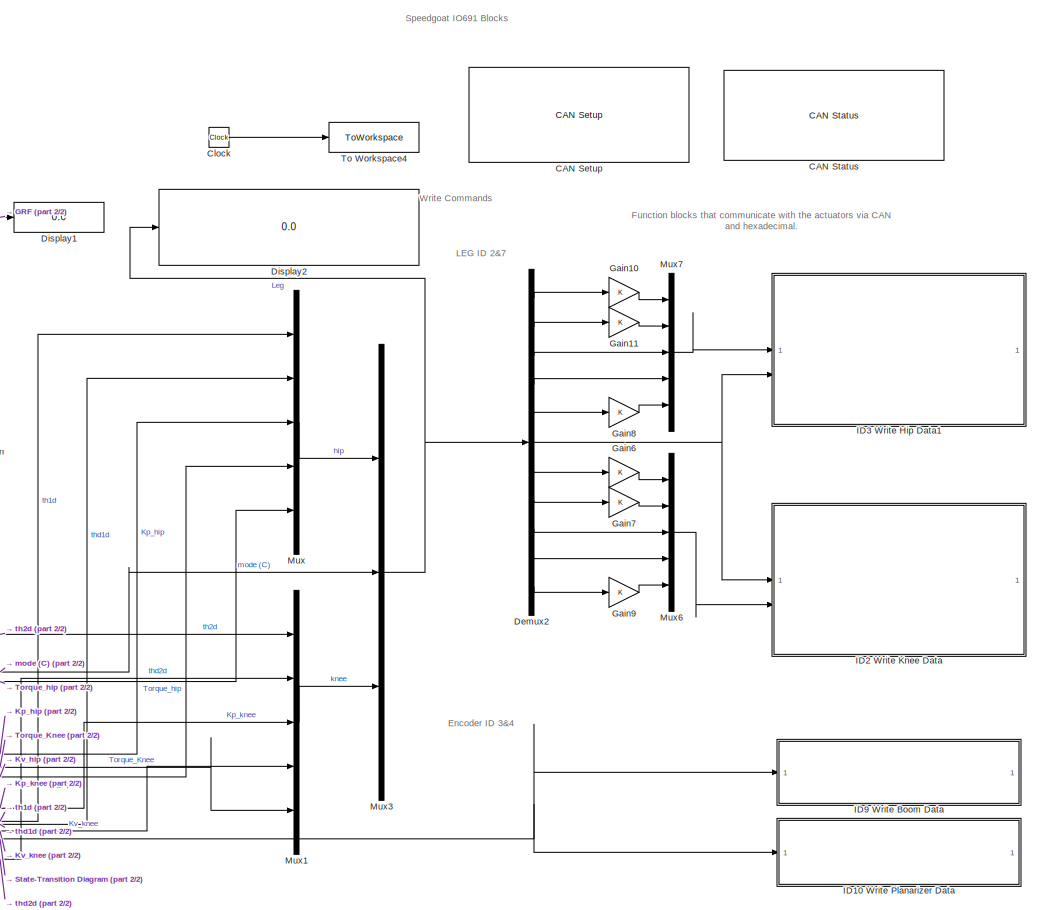
[diagram: root canvas - part 1/2, right side, full height]
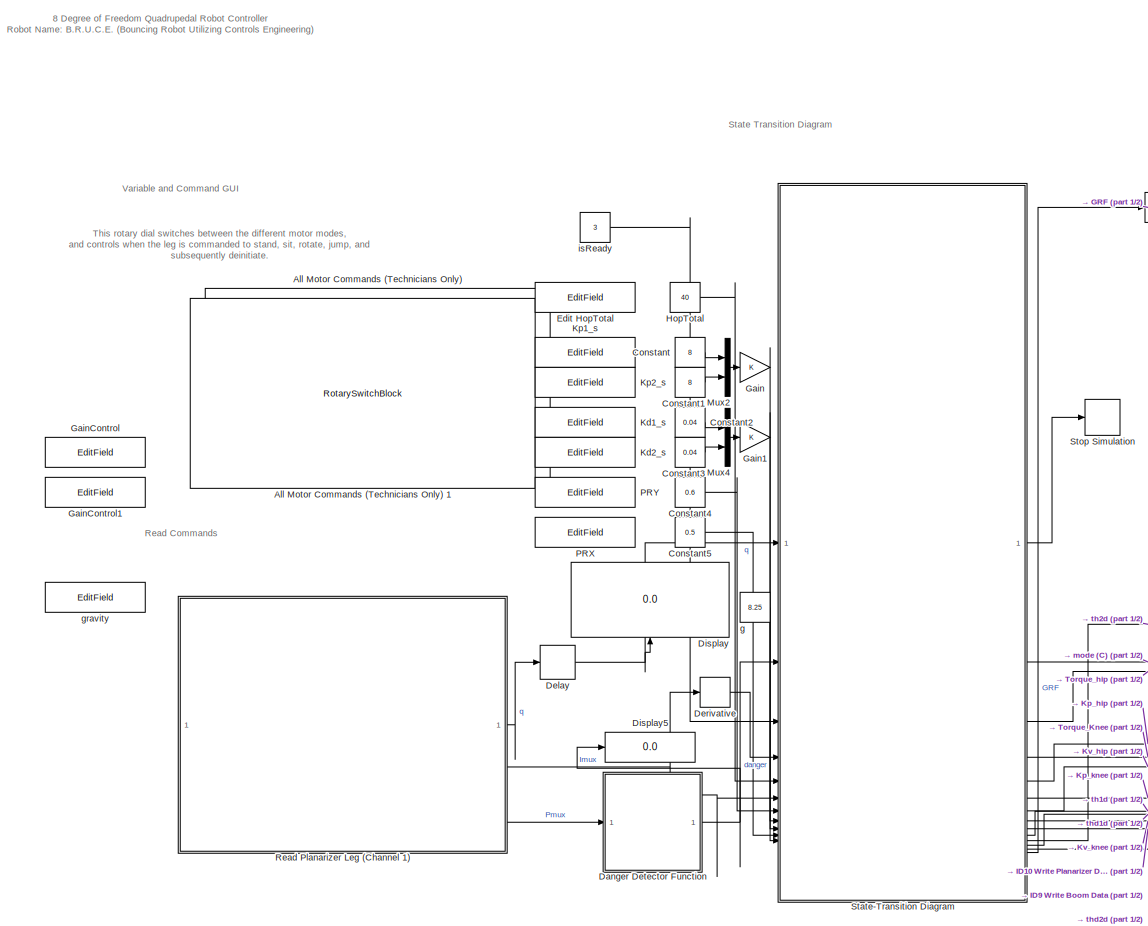
[diagram: root canvas - part 2/2, left side, full height]
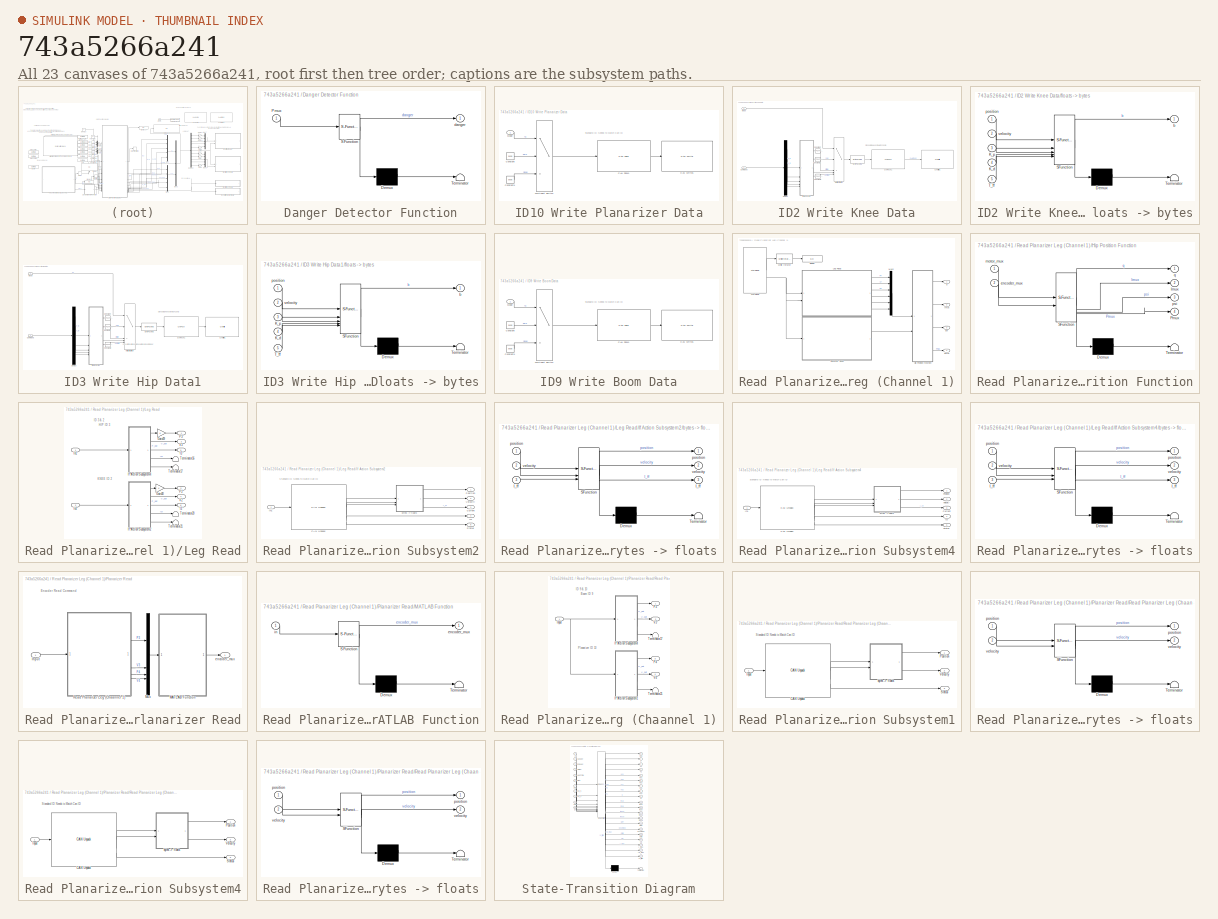
[diagram: thumbnail index - all 23 canvases of the model, root first then tree order]
MODEL slx_743a5266a241
KIND model
CONFIG AbsTol = auto
CONFIG EnableMultiTasking = off
CONFIG FixedStep = 0.005
CONFIG MaxStep = auto
CONFIG MinStep = auto
CONFIG RelTol = 1e-3
CONFIG SampleTimeConstraint = Unconstrained
CONFIG SolverName = FixedStepAuto
CONFIG StartTime = 0.0
CONFIG StopTime = inf
BLOCK [RotarySwitchBlock] All Motor Commands (Technicians Only) 
BLOCK [RotarySwitchBlock] All Motor Commands (Technicians Only) 1
BLOCK [Reference] CAN Setup   REF=speedgoatlib_IO691/Legacy/CAN Setup 
  SourceBlock = speedgoatlib_IO691/Legacy/CAN Setup
  SourceProductName = Simulink Real-Time: Speedgoat I/O Blockset
  SourceType = setup_IO691
BLOCK [Reference] CAN Status  REF=speedgoatlib_IO691/Legacy/CAN Status
  SourceBlock = speedgoatlib_IO691/Legacy/CAN Status
  SourceProductName = Simulink Real-Time: Speedgoat I/O Blockset
  SourceType = status_IO691
  UserDataPersistent = on
BLOCK [Clock] Clock
BLOCK [Constant] Constant
  Value = 8
BLOCK [Constant] Constant1
  Value = 8
BLOCK [Constant] Constant2
  Value = 0.04
BLOCK [Constant] Constant3
  Value = 0.04
BLOCK [Constant] Constant4
  Value = 0.6
BLOCK [Constant] Constant5
  Value = 0.5
BLOCK [SubSystem] Danger Detector Function
  ErrorFcn = Stateflow.Translate.translate
  PermitHierarchicalResolution = ExplicitOnly
  SFBlockType = MATLAB Function
  TreatAsAtomicUnit = on
BLOCK [Demux] Danger Detector Function/ Demux 
  Outputs = 1
BLOCK [S-Function] Danger Detector Function/ SFunction 
  EnableBusSupport = on
  FunctionName = sf_sfun
  PortCounts = [1 2]
  SFcnIsStateOwnerBlock = off
  SFunctionDeploymentMode = off
  Tag = Stateflow S-Function 6
BLOCK [Terminator] Danger Detector Function/ Terminator 
BLOCK [Inport] Danger Detector Function/Pmux
BLOCK [Outport] Danger Detector Function/danger
BLOCK [Delay] Delay
  DelayLength = 1
  InputPortMap = u0
BLOCK [Demux] Demux2
  Outputs = 11
BLOCK [Derivative] Derivative
BLOCK [Display] Display
  Decimation = 1
  NameLocation = left
BLOCK [Display] Display1
  Decimation = 1
BLOCK [Display] Display2
  Decimation = 1
BLOCK [Display] Display5
  Decimation = 1
  NameLocation = top
BLOCK [EditField] Edit HopTotal
  Alignment = Center
  LabelPosition = Hide
  ShowInitialText = on
BLOCK [Gain] Gain
BLOCK [Gain] Gain1
BLOCK [Gain] Gain10
BLOCK [Gain] Gain11
BLOCK [Gain] Gain6
BLOCK [Gain] Gain7
BLOCK [Gain] Gain8
BLOCK [Gain] Gain9
BLOCK [EditField] GainControl
  Alignment = Center
  LabelPosition = Hide
  NameLocation = right
  ShowInitialText = on
BLOCK [EditField] GainControl1
  Alignment = Center
  LabelPosition = Hide
  NameLocation = right
  ShowInitialText = on
BLOCK [Constant] HopTotal
  NameLocation = top
  Value = 40
BLOCK [SubSystem] ID10 Write Planarizer Data
  TreatAsAtomicUnit = on
BLOCK [Reference] ID10 Write Planarizer Data/CAN Pack1  REF=canmsglib/CAN Pack
  SourceBlock = canmsglib/CAN Pack
  SourceType = CAN Pack
BLOCK [Reference] ID10 Write Planarizer Data/CAN Write1  REF=speedgoatlib_IO691/Legacy/CAN Write
  SourceBlock = speedgoatlib_IO691/Legacy/CAN Write
  SourceProductName = Simulink Real-Time: Speedgoat I/O Blockset
  SourceType = write_IO691
BLOCK [Constant] ID10 Write Planarizer Data/Constant
  Value = 0x00
BLOCK [Constant] ID10 Write Planarizer Data/Constant1
  Value = 0x05
BLOCK [Inport] ID10 Write Planarizer Data/Mode
BLOCK [MultiPortSwitch] ID10 Write Planarizer Data/Multiport Switch
  DiagnosticForDefault = None
  InputSameDT = off
  Inputs = 2
  SaturateOnIntegerOverflow = off
BLOCK [SubSystem] ID2 Write Knee Data
  TreatAsAtomicUnit = on
BLOCK [Reference] ID2 Write Knee Data/Byte Packing  REF=slrealtimeutilitieslib/Byte Packing
  SourceBlock = slrealtimeutilitieslib/Byte Packing
  SourceType = slrealtimebytepacking
BLOCK [Reference] ID2 Write Knee Data/CAN Pack1  REF=canmsglib/CAN Pack
  SourceBlock = canmsglib/CAN Pack
  SourceType = CAN Pack
BLOCK [Reference] ID2 Write Knee Data/CAN Write1  REF=speedgoatlib_IO691/Legacy/CAN Write
  SourceBlock = speedgoatlib_IO691/Legacy/CAN Write
  SourceProductName = Simulink Real-Time: Speedgoat I/O Blockset
  SourceType = write_IO691
BLOCK [Inport] ID2 Write Knee Data/Command
  Port = 2
BLOCK [Constant] ID2 Write Knee Data/Constant
  Value = [0xFF, 0xFF, 0xFF, 0xFF, 0xFF, 0xFF, 0xFF, 0xFE]
BLOCK [Constant] ID2 Write Knee Data/Constant1
  Value = [0xFF, 0xFF, 0xFF, 0xFF, 0xFF, 0xFF, 0xFF, 0xFC]
BLOCK [Constant] ID2 Write Knee Data/Constant2
  Value = [0xFF, 0xFF, 0xFF, 0xFF, 0xFF, 0xFF, 0xFF, 0xFD]
BLOCK [Demux] ID2 Write Knee Data/Demux
  Outputs = 5
BLOCK [Inport] ID2 Write Knee Data/Mode
BLOCK [MultiPortSwitch] ID2 Write Knee Data/Multiport Switch
  DiagnosticForDefault = None
  InputSameDT = off
  Inputs = 4
  SaturateOnIntegerOverflow = off
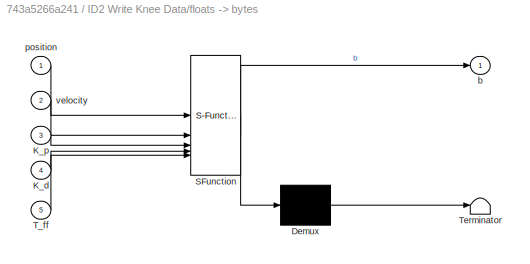
BLOCK [SubSystem] ID2 Write Knee Data/floats -> bytes
  ErrorFcn = Stateflow.Translate.translate
  PermitHierarchicalResolution = ExplicitOnly
  SFBlockType = MATLAB Function
  TreatAsAtomicUnit = on
BLOCK [Demux] ID2 Write Knee Data/floats -> bytes/ Demux 
  Outputs = 1
BLOCK [S-Function] ID2 Write Knee Data/floats -> bytes/ SFunction 
  EnableBusSupport = on
  FunctionName = sf_sfun
  PortCounts = [5 2]
  SFcnIsStateOwnerBlock = off
  SFunctionDeploymentMode = off
  Tag = Stateflow S-Function 13
BLOCK [Terminator] ID2 Write Knee Data/floats -> bytes/ Terminator 
BLOCK [Inport] ID2 Write Knee Data/floats -> bytes/K_d
  Port = 4
BLOCK [Inport] ID2 Write Knee Data/floats -> bytes/K_p
  Port = 3
BLOCK [Inport] ID2 Write Knee Data/floats -> bytes/T_ff
  Port = 5
BLOCK [Outport] ID2 Write Knee Data/floats -> bytes/b
BLOCK [Inport] ID2 Write Knee Data/floats -> bytes/position
BLOCK [Inport] ID2 Write Knee Data/floats -> bytes/velocity
  Port = 2
BLOCK [SubSystem] ID3 Write Hip Data1
  TreatAsAtomicUnit = on
BLOCK [Reference] ID3 Write Hip Data1/Byte Packing  REF=slrealtimeutilitieslib/Byte Packing
  SourceBlock = slrealtimeutilitieslib/Byte Packing
  SourceType = slrealtimebytepacking
BLOCK [Reference] ID3 Write Hip Data1/CAN Pack1  REF=canmsglib/CAN Pack
  SourceBlock = canmsglib/CAN Pack
  SourceType = CAN Pack
BLOCK [Reference] ID3 Write Hip Data1/CAN Write1  REF=speedgoatlib_IO691/Legacy/CAN Write
  SourceBlock = speedgoatlib_IO691/Legacy/CAN Write
  SourceProductName = Simulink Real-Time: Speedgoat I/O Blockset
  SourceType = write_IO691
BLOCK [Inport] ID3 Write Hip Data1/Command
BLOCK [Constant] ID3 Write Hip Data1/Constant
  Value = [0xFF, 0xFF, 0xFF, 0xFF, 0xFF, 0xFF, 0xFF, 0xFE]
BLOCK [Constant] ID3 Write Hip Data1/Constant1
  Value = [0xFF, 0xFF, 0xFF, 0xFF, 0xFF, 0xFF, 0xFF, 0xFC]
BLOCK [Constant] ID3 Write Hip Data1/Constant2
  Value = [0xFF, 0xFF, 0xFF, 0xFF, 0xFF, 0xFF, 0xFF, 0xFD]
BLOCK [Demux] ID3 Write Hip Data1/Demux
  Outputs = 5
BLOCK [Inport] ID3 Write Hip Data1/Mode
  Port = 2
BLOCK [MultiPortSwitch] ID3 Write Hip Data1/Multiport Switch
  DiagnosticForDefault = None
  InputSameDT = off
  Inputs = 4
  SaturateOnIntegerOverflow = off
BLOCK [SubSystem] ID3 Write Hip Data1/floats -> bytes
  ErrorFcn = Stateflow.Translate.translate
  PermitHierarchicalResolution = ExplicitOnly
  SFBlockType = MATLAB Function
  TreatAsAtomicUnit = on
BLOCK [Demux] ID3 Write Hip Data1/floats -> bytes/ Demux 
  Outputs = 1
BLOCK [S-Function] ID3 Write Hip Data1/floats -> bytes/ SFunction 
  EnableBusSupport = on
  FunctionName = sf_sfun
  PortCounts = [5 2]
  SFcnIsStateOwnerBlock = off
  SFunctionDeploymentMode = off
  Tag = Stateflow S-Function 4
BLOCK [Terminator] ID3 Write Hip Data1/floats -> bytes/ Terminator 
BLOCK [Inport] ID3 Write Hip Data1/floats -> bytes/K_d
  Port = 4
BLOCK [Inport] ID3 Write Hip Data1/floats -> bytes/K_p
  Port = 3
BLOCK [Inport] ID3 Write Hip Data1/floats -> bytes/T_ff
  Port = 5
BLOCK [Outport] ID3 Write Hip Data1/floats -> bytes/b
BLOCK [Inport] ID3 Write Hip Data1/floats -> bytes/position
BLOCK [Inport] ID3 Write Hip Data1/floats -> bytes/velocity
  Port = 2
BLOCK [SubSystem] ID9 Write Boom Data
  TreatAsAtomicUnit = on
BLOCK [Reference] ID9 Write Boom Data/CAN Pack1  REF=canmsglib/CAN Pack
  SourceBlock = canmsglib/CAN Pack
  SourceType = CAN Pack
BLOCK [Reference] ID9 Write Boom Data/CAN Write1  REF=speedgoatlib_IO691/Legacy/CAN Write
  SourceBlock = speedgoatlib_IO691/Legacy/CAN Write
  SourceProductName = Simulink Real-Time: Speedgoat I/O Blockset
  SourceType = write_IO691
BLOCK [Constant] ID9 Write Boom Data/Constant
  Value = 0x00
BLOCK [Constant] ID9 Write Boom Data/Constant1
  Value = 0x05
BLOCK [Inport] ID9 Write Boom Data/Mode
BLOCK [MultiPortSwitch] ID9 Write Boom Data/Multiport Switch
  DiagnosticForDefault = None
  InputSameDT = off
  Inputs = 2
  OutMin = 0
  SaturateOnIntegerOverflow = off
BLOCK [EditField] Kd1_s
  Alignment = Center
  LabelPosition = Hide
  NameLocation = right
  ShowInitialText = on
BLOCK [EditField] Kd2_s
  Alignment = Center
  LabelPosition = Hide
  NameLocation = right
  ShowInitialText = on
BLOCK [EditField] Kp1_s
  Alignment = Center
  LabelPosition = Hide
  NameLocation = right
  ShowInitialText = on
BLOCK [EditField] Kp2_s
  Alignment = Center
  LabelPosition = Hide
  NameLocation = right
  ShowInitialText = on
BLOCK [Mux] Mux
  DisplayOption = bar
  Inputs = 5
BLOCK [Mux] Mux1
  DisplayOption = bar
  Inputs = 5
BLOCK [Mux] Mux2
  DisplayOption = bar
  Inputs = 2
BLOCK [Mux] Mux3
  DisplayOption = bar
  Inputs = 3
BLOCK [Mux] Mux4
  DisplayOption = bar
  Inputs = 2
BLOCK [Mux] Mux6
  DisplayOption = bar
  Inputs = 5
BLOCK [Mux] Mux7
  DisplayOption = bar
  Inputs = 5
BLOCK [EditField] PRX
  Alignment = Center
  LabelPosition = Hide
  NameLocation = right
  ShowInitialText = on
BLOCK [EditField] PRY
  Alignment = Center
  LabelPosition = Hide
  NameLocation = right
  ShowInitialText = on
BLOCK [SubSystem] Read Planarizer Leg (Channel 1)
  NameLocation = top
  TreatAsAtomicUnit = on
BLOCK [Reference] Read Planarizer Leg (Channel 1)/CAN Read  REF=speedgoatlib_IO691/Legacy/CAN Read
  SourceBlock = speedgoatlib_IO691/Legacy/CAN Read
  SourceProductName = Simulink Real-Time: Speedgoat I/O Blockset
  SourceType = read_IO691
BLOCK [Display] Read Planarizer Leg (Channel 1)/Display
  Decimation = 1
BLOCK [SubSystem] Read Planarizer Leg (Channel 1)/Hip Position Function
  ErrorFcn = Stateflow.Translate.translate
  PermitHierarchicalResolution = ExplicitOnly
  SFBlockType = MATLAB Function
  TreatAsAtomicUnit = on
BLOCK [Demux] Read Planarizer Leg (Channel 1)/Hip Position Function/ Demux 
  Outputs = 1
BLOCK [S-Function] Read Planarizer Leg (Channel 1)/Hip Position Function/ SFunction 
  EnableBusSupport = on
  FunctionName = sf_sfun
  PortCounts = [2 5]
  SFcnIsStateOwnerBlock = off
  SFunctionDeploymentMode = off
  Tag = Stateflow S-Function 9
BLOCK [Terminator] Read Planarizer Leg (Channel 1)/Hip Position Function/ Terminator 
BLOCK [Outport] Read Planarizer Leg (Channel 1)/Hip Position Function/Imux
  Port = 2
BLOCK [Outport] Read Planarizer Leg (Channel 1)/Hip Position Function/Pmux
  Port = 4
BLOCK [Inport] Read Planarizer Leg (Channel 1)/Hip Position Function/encoder_mux
  Port = 2
BLOCK [Inport] Read Planarizer Leg (Channel 1)/Hip Position Function/motor_mux
BLOCK [Outport] Read Planarizer Leg (Channel 1)/Hip Position Function/psi
  Port = 3
BLOCK [Outport] Read Planarizer Leg (Channel 1)/Hip Position Function/q
BLOCK [Outport] Read Planarizer Leg (Channel 1)/Imux
  Port = 2
BLOCK [SubSystem] Read Planarizer Leg (Channel 1)/Leg Read
  NameLocation = top
BLOCK [Gain] Read Planarizer Leg (Channel 1)/Leg Read/Gain29
BLOCK [Gain] Read Planarizer Leg (Channel 1)/Leg Read/Gain30
BLOCK [Outport] Read Planarizer Leg (Channel 1)/Leg Read/I2
  Port = 6
BLOCK [Outport] Read Planarizer Leg (Channel 1)/Leg Read/I3
  Port = 5
BLOCK [SubSystem] Read Planarizer Leg (Channel 1)/Leg Read/If Action Subsystem2
  TreatAsAtomicUnit = on
BLOCK [Reference] Read Planarizer Leg (Channel 1)/Leg Read/If Action Subsystem2/CAN Unpack  REF=canmsglib/CAN Unpack
  SourceBlock = canmsglib/CAN Unpack
  SourceType = CAN Unpack
BLOCK [Outport] Read Planarizer Leg (Channel 1)/Leg Read/If Action Subsystem2/Current
  Port = 3
BLOCK [Outport] Read Planarizer Leg (Channel 1)/Leg Read/If Action Subsystem2/ID
  Port = 4
BLOCK [Inport] Read Planarizer Leg (Channel 1)/Leg Read/If Action Subsystem2/In1
BLOCK [Outport] Read Planarizer Leg (Channel 1)/Leg Read/If Action Subsystem2/Position
BLOCK [Outport] Read Planarizer Leg (Channel 1)/Leg Read/If Action Subsystem2/Status
  Port = 5
BLOCK [Outport] Read Planarizer Leg (Channel 1)/Leg Read/If Action Subsystem2/Velocity
  Port = 2
BLOCK [SubSystem] Read Planarizer Leg (Channel 1)/Leg Read/If Action Subsystem2/bytes -> floats
  ErrorFcn = Stateflow.Translate.translate
  PermitHierarchicalResolution = ExplicitOnly
  SFBlockType = MATLAB Function
  TreatAsAtomicUnit = on
BLOCK [Demux] Read Planarizer Leg (Channel 1)/Leg Read/If Action Subsystem2/bytes -> floats/ Demux 
  Outputs = 1
BLOCK [S-Function] Read Planarizer Leg (Channel 1)/Leg Read/If Action Subsystem2/bytes -> floats/ SFunction 
  EnableBusSupport = on
  FunctionName = sf_sfun
  PortCounts = [3 4]
  SFcnIsStateOwnerBlock = off
  SFunctionDeploymentMode = off
  Tag = Stateflow S-Function 2
BLOCK [Terminator] Read Planarizer Leg (Channel 1)/Leg Read/If Action Subsystem2/bytes -> floats/ Terminator 
BLOCK [Outport] Read Planarizer Leg (Channel 1)/Leg Read/If Action Subsystem2/bytes -> floats/I_ff
  Port = 3
BLOCK [Inport] Read Planarizer Leg (Channel 1)/Leg Read/If Action Subsystem2/bytes -> floats/I_ff 
  Port = 3
BLOCK [Outport] Read Planarizer Leg (Channel 1)/Leg Read/If Action Subsystem2/bytes -> floats/position
BLOCK [Inport] Read Planarizer Leg (Channel 1)/Leg Read/If Action Subsystem2/bytes -> floats/position 
BLOCK [Outport] Read Planarizer Leg (Channel 1)/Leg Read/If Action Subsystem2/bytes -> floats/velocity
  Port = 2
BLOCK [Inport] Read Planarizer Leg (Channel 1)/Leg Read/If Action Subsystem2/bytes -> floats/velocity 
  Port = 2
BLOCK [SubSystem] Read Planarizer Leg (Channel 1)/Leg Read/If Action Subsystem4
  TreatAsAtomicUnit = on
BLOCK [Reference] Read Planarizer Leg (Channel 1)/Leg Read/If Action Subsystem4/CAN Unpack  REF=canmsglib/CAN Unpack
  SourceBlock = canmsglib/CAN Unpack
  SourceType = CAN Unpack
BLOCK [Outport] Read Planarizer Leg (Channel 1)/Leg Read/If Action Subsystem4/Current
  Port = 3
BLOCK [Outport] Read Planarizer Leg (Channel 1)/Leg Read/If Action Subsystem4/ID
  Port = 4
BLOCK [Inport] Read Planarizer Leg (Channel 1)/Leg Read/If Action Subsystem4/In1
BLOCK [Outport] Read Planarizer Leg (Channel 1)/Leg Read/If Action Subsystem4/Position
BLOCK [Outport] Read Planarizer Leg (Channel 1)/Leg Read/If Action Subsystem4/Status
  Port = 5
BLOCK [Outport] Read Planarizer Leg (Channel 1)/Leg Read/If Action Subsystem4/Velocity
  Port = 2
BLOCK [SubSystem] Read Planarizer Leg (Channel 1)/Leg Read/If Action Subsystem4/bytes -> floats
  ErrorFcn = Stateflow.Translate.translate
  PermitHierarchicalResolution = ExplicitOnly
  SFBlockType = MATLAB Function
  TreatAsAtomicUnit = on
BLOCK [Demux] Read Planarizer Leg (Channel 1)/Leg Read/If Action Subsystem4/bytes -> floats/ Demux 
  Outputs = 1
BLOCK [S-Function] Read Planarizer Leg (Channel 1)/Leg Read/If Action Subsystem4/bytes -> floats/ SFunction 
  EnableBusSupport = on
  FunctionName = sf_sfun
  PortCounts = [3 4]
  SFcnIsStateOwnerBlock = off
  SFunctionDeploymentMode = off
  Tag = Stateflow S-Function 1
BLOCK [Terminator] Read Planarizer Leg (Channel 1)/Leg Read/If Action Subsystem4/bytes -> floats/ Terminator 
BLOCK [Outport] Read Planarizer Leg (Channel 1)/Leg Read/If Action Subsystem4/bytes -> floats/I_ff
  Port = 3
BLOCK [Inport] Read Planarizer Leg (Channel 1)/Leg Read/If Action Subsystem4/bytes -> floats/I_ff 
  Port = 3
BLOCK [Outport] Read Planarizer Leg (Channel 1)/Leg Read/If Action Subsystem4/bytes -> floats/position
BLOCK [Inport] Read Planarizer Leg (Channel 1)/Leg Read/If Action Subsystem4/bytes -> floats/position 
BLOCK [Outport] Read Planarizer Leg (Channel 1)/Leg Read/If Action Subsystem4/bytes -> floats/velocity
  Port = 2
BLOCK [Inport] Read Planarizer Leg (Channel 1)/Leg Read/If Action Subsystem4/bytes -> floats/velocity 
  Port = 2
BLOCK [Inport] Read Planarizer Leg (Channel 1)/Leg Read/In1
BLOCK [Inport] Read Planarizer Leg (Channel 1)/Leg Read/In2
  Port = 2
BLOCK [Outport] Read Planarizer Leg (Channel 1)/Leg Read/P2
  Port = 3
BLOCK [Outport] Read Planarizer Leg (Channel 1)/Leg Read/P3
BLOCK [Terminator] Read Planarizer Leg (Channel 1)/Leg Read/Terminator16
BLOCK [Terminator] Read Planarizer Leg (Channel 1)/Leg Read/Terminator17
BLOCK [Terminator] Read Planarizer Leg (Channel 1)/Leg Read/Terminator20
BLOCK [Terminator] Read Planarizer Leg (Channel 1)/Leg Read/Terminator21
BLOCK [Outport] Read Planarizer Leg (Channel 1)/Leg Read/V2
  Port = 4
BLOCK [Outport] Read Planarizer Leg (Channel 1)/Leg Read/V3
  Port = 2
BLOCK [Mux] Read Planarizer Leg (Channel 1)/Mux2
  DisplayOption = bar
  Inputs = 6
BLOCK [SubSystem] Read Planarizer Leg (Channel 1)/Planarizer Read
BLOCK [Inport] Read Planarizer Leg (Channel 1)/Planarizer Read/Input
BLOCK [SubSystem] Read Planarizer Leg (Channel 1)/Planarizer Read/MATLAB Function
  ErrorFcn = Stateflow.Translate.translate
  LibrarySourceBlock = simulink/User-Defined\nFunctions/MATLAB Function
  PermitHierarchicalResolution = ExplicitOnly
  SFBlockType = MATLAB Function
  TreatAsAtomicUnit = on
BLOCK [Demux] Read Planarizer Leg (Channel 1)/Planarizer Read/MATLAB Function/ Demux 
  Outputs = 1
BLOCK [S-Function] Read Planarizer Leg (Channel 1)/Planarizer Read/MATLAB Function/ SFunction 
  EnableBusSupport = on
  FunctionName = sf_sfun
  PortCounts = [1 2]
  SFcnIsStateOwnerBlock = off
  SFunctionDeploymentMode = off
  Tag = Stateflow S-Function 7
BLOCK [Terminator] Read Planarizer Leg (Channel 1)/Planarizer Read/MATLAB Function/ Terminator 
BLOCK [Outport] Read Planarizer Leg (Channel 1)/Planarizer Read/MATLAB Function/encoder_mux
BLOCK [Inport] Read Planarizer Leg (Channel 1)/Planarizer Read/MATLAB Function/in
BLOCK [Mux] Read Planarizer Leg (Channel 1)/Planarizer Read/Mux
  DisplayOption = bar
BLOCK [SubSystem] Read Planarizer Leg (Channel 1)/Planarizer Read/Read Planarizer Leg (Chaannel 1)
  TreatAsAtomicUnit = on
BLOCK [SubSystem] Read Planarizer Leg (Channel 1)/Planarizer Read/Read Planarizer Leg (Chaannel 1)/If Action Subsystem1
  TreatAsAtomicUnit = on
BLOCK [Reference] Read Planarizer Leg (Channel 1)/Planarizer Read/Read Planarizer Leg (Chaannel 1)/If Action Subsystem1/CAN Unpack  REF=canmsglib/CAN Unpack
  SourceBlock = canmsglib/CAN Unpack
  SourceType = CAN Unpack
BLOCK [Inport] Read Planarizer Leg (Channel 1)/Planarizer Read/Read Planarizer Leg (Chaannel 1)/If Action Subsystem1/Input
BLOCK [Outport] Read Planarizer Leg (Channel 1)/Planarizer Read/Read Planarizer Leg (Chaannel 1)/If Action Subsystem1/Position
BLOCK [Outport] Read Planarizer Leg (Channel 1)/Planarizer Read/Read Planarizer Leg (Chaannel 1)/If Action Subsystem1/Status
  Port = 3
BLOCK [Outport] Read Planarizer Leg (Channel 1)/Planarizer Read/Read Planarizer Leg (Chaannel 1)/If Action Subsystem1/Velocity
  Port = 2
BLOCK [SubSystem] Read Planarizer Leg (Channel 1)/Planarizer Read/Read Planarizer Leg (Chaannel 1)/If Action Subsystem1/bytes -> floats
  ErrorFcn = Stateflow.Translate.translate
  PermitHierarchicalResolution = ExplicitOnly
  SFBlockType = MATLAB Function
  TreatAsAtomicUnit = on
BLOCK [Demux] Read Planarizer Leg (Channel 1)/Planarizer Read/Read Planarizer Leg (Chaannel 1)/If Action Subsystem1/bytes -> floats/ Demux 
  Outputs = 1
BLOCK [S-Function] Read Planarizer Leg (Channel 1)/Planarizer Read/Read Planarizer Leg (Chaannel 1)/If Action Subsystem1/bytes -> floats/ SFunction 
  EnableBusSupport = on
  FunctionName = sf_sfun
  PortCounts = [2 3]
  SFcnIsStateOwnerBlock = off
  SFunctionDeploymentMode = off
  Tag = Stateflow S-Function 10
BLOCK [Terminator] Read Planarizer Leg (Channel 1)/Planarizer Read/Read Planarizer Leg (Chaannel 1)/If Action Subsystem1/bytes -> floats/ Terminator 
BLOCK [Outport] Read Planarizer Leg (Channel 1)/Planarizer Read/Read Planarizer Leg (Chaannel 1)/If Action Subsystem1/bytes -> floats/position
BLOCK [Inport] Read Planarizer Leg (Channel 1)/Planarizer Read/Read Planarizer Leg (Chaannel 1)/If Action Subsystem1/bytes -> floats/position 
BLOCK [Outport] Read Planarizer Leg (Channel 1)/Planarizer Read/Read Planarizer Leg (Chaannel 1)/If Action Subsystem1/bytes -> floats/velocity
  Port = 2
BLOCK [Inport] Read Planarizer Leg (Channel 1)/Planarizer Read/Read Planarizer Leg (Chaannel 1)/If Action Subsystem1/bytes -> floats/velocity 
  Port = 2
BLOCK [SubSystem] Read Planarizer Leg (Channel 1)/Planarizer Read/Read Planarizer Leg (Chaannel 1)/If Action Subsystem4
  TreatAsAtomicUnit = on
BLOCK [Reference] Read Planarizer Leg (Channel 1)/Planarizer Read/Read Planarizer Leg (Chaannel 1)/If Action Subsystem4/CAN Unpack  REF=canmsglib/CAN Unpack
  SourceBlock = canmsglib/CAN Unpack
  SourceType = CAN Unpack
BLOCK [Inport] Read Planarizer Leg (Channel 1)/Planarizer Read/Read Planarizer Leg (Chaannel 1)/If Action Subsystem4/Input
BLOCK [Outport] Read Planarizer Leg (Channel 1)/Planarizer Read/Read Planarizer Leg (Chaannel 1)/If Action Subsystem4/Position
BLOCK [Outport] Read Planarizer Leg (Channel 1)/Planarizer Read/Read Planarizer Leg (Chaannel 1)/If Action Subsystem4/Status
  Port = 3
BLOCK [Outport] Read Planarizer Leg (Channel 1)/Planarizer Read/Read Planarizer Leg (Chaannel 1)/If Action Subsystem4/Velocity
  Port = 2
BLOCK [SubSystem] Read Planarizer Leg (Channel 1)/Planarizer Read/Read Planarizer Leg (Chaannel 1)/If Action Subsystem4/bytes -> floats
  ErrorFcn = Stateflow.Translate.translate
  PermitHierarchicalResolution = ExplicitOnly
  SFBlockType = MATLAB Function
  TreatAsAtomicUnit = on
BLOCK [Demux] Read Planarizer Leg (Channel 1)/Planarizer Read/Read Planarizer Leg (Chaannel 1)/If Action Subsystem4/bytes -> floats/ Demux 
  Outputs = 1
BLOCK [S-Function] Read Planarizer Leg (Channel 1)/Planarizer Read/Read Planarizer Leg (Chaannel 1)/If Action Subsystem4/bytes -> floats/ SFunction 
  EnableBusSupport = on
  FunctionName = sf_sfun
  PortCounts = [2 3]
  SFcnIsStateOwnerBlock = off
  SFunctionDeploymentMode = off
  Tag = Stateflow S-Function 11
BLOCK [Terminator] Read Planarizer Leg (Channel 1)/Planarizer Read/Read Planarizer Leg (Chaannel 1)/If Action Subsystem4/bytes -> floats/ Terminator 
BLOCK [Outport] Read Planarizer Leg (Channel 1)/Planarizer Read/Read Planarizer Leg (Chaannel 1)/If Action Subsystem4/bytes -> floats/position
BLOCK [Inport] Read Planarizer Leg (Channel 1)/Planarizer Read/Read Planarizer Leg (Chaannel 1)/If Action Subsystem4/bytes -> floats/position 
BLOCK [Outport] Read Planarizer Leg (Channel 1)/Planarizer Read/Read Planarizer Leg (Chaannel 1)/If Action Subsystem4/bytes -> floats/velocity
  Port = 2
BLOCK [Inport] Read Planarizer Leg (Channel 1)/Planarizer Read/Read Planarizer Leg (Chaannel 1)/If Action Subsystem4/bytes -> floats/velocity 
  Port = 2
BLOCK [Inport] Read Planarizer Leg (Channel 1)/Planarizer Read/Read Planarizer Leg (Chaannel 1)/Input
BLOCK [Outport] Read Planarizer Leg (Channel 1)/Planarizer Read/Read Planarizer Leg (Chaannel 1)/P3
BLOCK [Outport] Read Planarizer Leg (Channel 1)/Planarizer Read/Read Planarizer Leg (Chaannel 1)/P4
  Port = 3
BLOCK [Terminator] Read Planarizer Leg (Channel 1)/Planarizer Read/Read Planarizer Leg (Chaannel 1)/Terminator17
BLOCK [Terminator] Read Planarizer Leg (Channel 1)/Planarizer Read/Read Planarizer Leg (Chaannel 1)/Terminator21
BLOCK [Outport] Read Planarizer Leg (Channel 1)/Planarizer Read/Read Planarizer Leg (Chaannel 1)/V3
  Port = 2
BLOCK [Outport] Read Planarizer Leg (Channel 1)/Planarizer Read/Read Planarizer Leg (Chaannel 1)/V4
  Port = 4
BLOCK [Outport] Read Planarizer Leg (Channel 1)/Planarizer Read/encoder_mux
BLOCK [Outport] Read Planarizer Leg (Channel 1)/Pmux
  Port = 4
BLOCK [WhileIterator] Read Planarizer Leg (Channel 1)/While Iterator
  MaxIters = -1
  ResetStates = reset
  ShowIterationPort = on
  WhileBlockType = do-while
BLOCK [Outport] Read Planarizer Leg (Channel 1)/psi
  Port = 3
BLOCK [Outport] Read Planarizer Leg (Channel 1)/q
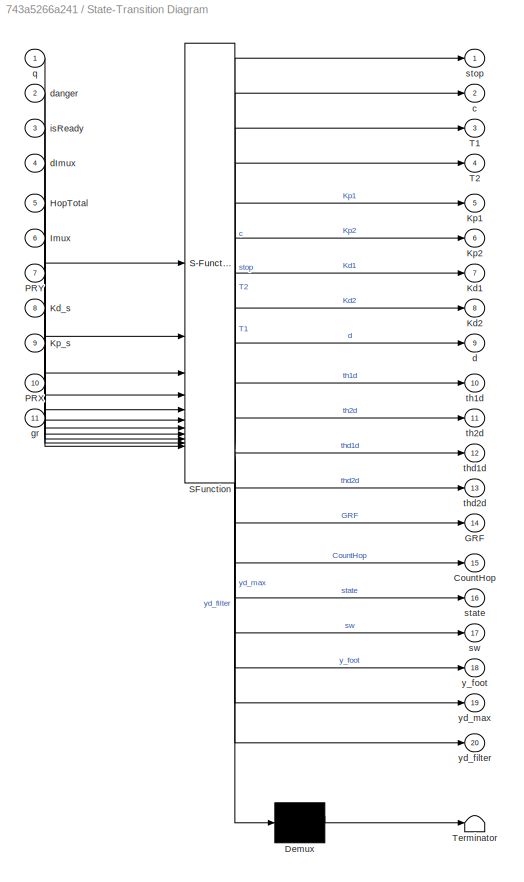
BLOCK [SubSystem] State-Transition Diagram
  ErrorFcn = Stateflow.Translate.translate
  PermitHierarchicalResolution = ExplicitOnly
  PortSchema = {"entries":[{"content":{"sides":[{"content":{"connectorIds":["In3","In5","In9","In8","In7","In10","In11","In1","In4","In6","In2"]},"type":"ConnectorPlacement.EquallySpacedRectSide","uuid":"09499f21-f50c-4ce4-914e-8b9942bcc246"},{"content":{"connectorIds":["Out14","Out16","Out17","Out18","Out19","Out20","Out15","Out1","Out10","Out12","Out5","Out7","Out3","Out2","Out11","Out13","Out6","Out8","Out4",...<+428ch>
  SFBlockType = Chart
  TreatAsAtomicUnit = on
BLOCK [Demux] State-Transition Diagram/ Demux 
  Outputs = 1
BLOCK [S-Function] State-Transition Diagram/ SFunction 
  EnableBusSupport = on
  FunctionName = sf_sfun
  PortCounts = [11 21]
  SFcnIsStateOwnerBlock = off
  SFunctionDeploymentMode = off
  Tag = Stateflow S-Function 8
BLOCK [Terminator] State-Transition Diagram/ Terminator 
BLOCK [Outport] State-Transition Diagram/CountHop
  Port = 15
BLOCK [Outport] State-Transition Diagram/GRF
  Port = 14
BLOCK [Inport] State-Transition Diagram/HopTotal
  Port = 5
BLOCK [Inport] State-Transition Diagram/Imux
  Port = 6
BLOCK [Outport] State-Transition Diagram/Kd1
  Port = 7
BLOCK [Outport] State-Transition Diagram/Kd2
  Port = 8
BLOCK [Inport] State-Transition Diagram/Kd_s
  Port = 8
BLOCK [Outport] State-Transition Diagram/Kp1
  Port = 5
BLOCK [Outport] State-Transition Diagram/Kp2
  Port = 6
BLOCK [Inport] State-Transition Diagram/Kp_s
  Port = 9
BLOCK [Inport] State-Transition Diagram/PRX
  Port = 10
BLOCK [Inport] State-Transition Diagram/PRY
  Port = 7
BLOCK [Outport] State-Transition Diagram/T1
  Port = 3
BLOCK [Outport] State-Transition Diagram/T2
  Port = 4
BLOCK [Outport] State-Transition Diagram/c
  Port = 2
BLOCK [Outport] State-Transition Diagram/d
  Port = 9
BLOCK [Inport] State-Transition Diagram/dImux
  Port = 4
BLOCK [Inport] State-Transition Diagram/danger
  Port = 2
BLOCK [Inport] State-Transition Diagram/gr
  Port = 11
BLOCK [Inport] State-Transition Diagram/isReady
  Port = 3
BLOCK [Inport] State-Transition Diagram/q
BLOCK [Outport] State-Transition Diagram/state
  Port = 16
BLOCK [Outport] State-Transition Diagram/stop
BLOCK [Outport] State-Transition Diagram/sw
  Port = 17
BLOCK [Outport] State-Transition Diagram/th1d
  Port = 10
BLOCK [Outport] State-Transition Diagram/th2d
  Port = 11
BLOCK [Outport] State-Transition Diagram/thd1d
  Port = 12
BLOCK [Outport] State-Transition Diagram/thd2d
  Port = 13
BLOCK [Outport] State-Transition Diagram/y_foot
  Port = 18
BLOCK [Outport] State-Transition Diagram/yd_filter
  Port = 20
BLOCK [Outport] State-Transition Diagram/yd_max
  Port = 19
BLOCK [Stop] Stop Simulation
BLOCK [ToWorkspace] To Workspace4
  FixptAsFi = on
  MaxDataPoints = inf
  SampleTime = -1
  VariableName = timeout
BLOCK [Constant] g
  Value = 8.25
BLOCK [EditField] gravity
  Alignment = Center
  LabelPosition = Hide
  NameLocation = right
  ShowInitialText = on
BLOCK [Constant] isReady
  Value = 3
ANNOTATION (root): State Transition Diagram
ANNOTATION (root): 8 Degree of Freedom Quadrupedal Robot Controller Robot Name: B.R.U.C.E. (Bouncing Robot Utilizing Controls Engineering)
ANNOTATION (root): Encoder ID 3&4
ANNOTATION (root): Function blocks that communicate with the actuators via CAN and hexadecimal.
ANNOTATION (root): LEG ID 2&7
ANNOTATION (root): Read Commands
ANNOTATION (root): Speedgoat IO691 Blocks
ANNOTATION (root): This rotary dial switches between the different motor modes, and controls when the leg is commanded to stand, sit, rotate, jump, and subsequently deinitiate.
ANNOTATION (root): Variable and Command GUI
ANNOTATION (root): Write Commands
ANNOTATION ID10 Write Planarizer Data: Standard ID Needs to Match Can ID
ANNOTATION ID2 Write Knee Data: Standard ID Needs to Match Can ID
ANNOTATION ID3 Write Hip Data1: Converts inputted data to an 8-bit unsigned integer
ANNOTATION ID3 Write Hip Data1: Standard ID Needs to Match Can ID
ANNOTATION ID9 Write Boom Data: Standard ID Needs to Match Can ID
ANNOTATION Read Planarizer Leg (Channel 1)/Leg Read: HIP ID 3
ANNOTATION Read Planarizer Leg (Channel 1)/Leg Read: ID 3 & 2
ANNOTATION Read Planarizer Leg (Channel 1)/Leg Read: KNEE ID 2
ANNOTATION Read Planarizer Leg (Channel 1)/Leg Read/If Action Subsystem2: Standard ID Needs to Match Can ID
ANNOTATION Read Planarizer Leg (Channel 1)/Leg Read/If Action Subsystem4: Standard ID Needs to Match Can ID
ANNOTATION Read Planarizer Leg (Channel 1)/Planarizer Read: Encoder Read Command
ANNOTATION Read Planarizer Leg (Channel 1)/Planarizer Read/Read Planarizer Leg (Chaannel 1): Boom ID 9
ANNOTATION Read Planarizer Leg (Channel 1)/Planarizer Read/Read Planarizer Leg (Chaannel 1): ID 9 & 10
ANNOTATION Read Planarizer Leg (Channel 1)/Planarizer Read/Read Planarizer Leg (Chaannel 1): Planarizer ID 10
ANNOTATION Read Planarizer Leg (Channel 1)/Planarizer Read/Read Planarizer Leg (Chaannel 1)/If Action Subsystem1: Standard ID Needs to Match Can ID
ANNOTATION Read Planarizer Leg (Channel 1)/Planarizer Read/Read Planarizer Leg (Chaannel 1)/If Action Subsystem4: Standard ID Needs to Match Can ID
LINE Clock:1 -> To Workspace4:1
LINE Constant1:1 -> Mux2:2
LINE Constant2:1 -> Mux4:1
LINE Constant3:1 -> Mux4:2
LINE Constant4:1 -> State-Transition Diagram:7
LINE Constant5:1 -> State-Transition Diagram:10
LINE Constant:1 -> Mux2:1
NET Danger Detector Function:1 -> Display5:1, State-Transition Diagram:2
NET Delay:1 -> Display:1, State-Transition Diagram:1
LINE Demux2:1 -> Gain10:1
LINE Demux2:10 -> Mux6:4
LINE Demux2:11 -> Gain9:1
LINE Demux2:2 -> Gain11:1
LINE Demux2:3 -> Mux7:3
LINE Demux2:4 -> Mux7:4
LINE Demux2:5 -> Gain8:1
NET Demux2:6 -> ID2 Write Knee Data:1, ID3 Write Hip Data1:2
LINE Demux2:7 -> Gain6:1
LINE Demux2:8 -> Gain7:1
LINE Demux2:9 -> Mux6:3
LINE Derivative:1 -> State-Transition Diagram:4
LINE Gain10:1 -> Mux7:1
LINE Gain11:1 -> Mux7:2
LINE Gain1:1 -> State-Transition Diagram:8
LINE Gain6:1 -> Mux6:1
LINE Gain7:1 -> Mux6:2
LINE Gain8:1 -> Mux7:5
LINE Gain9:1 -> Mux6:5
LINE Gain:1 -> State-Transition Diagram:9
LINE HopTotal:1 -> State-Transition Diagram:5
LINE ID10 Write Planarizer Data/CAN Pack1:1 -> ID10 Write Planarizer Data/CAN Write1:1
LINE ID10 Write Planarizer Data/Constant1:1 -> ID10 Write Planarizer Data/Multiport Switch:3
LINE ID10 Write Planarizer Data/Constant:1 -> ID10 Write Planarizer Data/Multiport Switch:2
LINE ID10 Write Planarizer Data/Mode:1 -> ID10 Write Planarizer Data/Multiport Switch:1
LINE ID10 Write Planarizer Data/Multiport Switch:1 -> ID10 Write Planarizer Data/CAN Pack1:1
LINE ID2 Write Knee Data/Byte Packing:1 -> ID2 Write Knee Data/CAN Pack1:1
LINE ID2 Write Knee Data/CAN Pack1:1 -> ID2 Write Knee Data/CAN Write1:1
LINE ID2 Write Knee Data/Command:1 -> ID2 Write Knee Data/Demux:1
LINE ID2 Write Knee Data/Constant1:1 -> ID2 Write Knee Data/Multiport Switch:3
LINE ID2 Write Knee Data/Constant2:1 -> ID2 Write Knee Data/Multiport Switch:5
LINE ID2 Write Knee Data/Constant:1 -> ID2 Write Knee Data/Multiport Switch:2
LINE ID2 Write Knee Data/Demux:1 -> ID2 Write Knee Data/floats -> bytes:1
LINE ID2 Write Knee Data/Demux:2 -> ID2 Write Knee Data/floats -> bytes:2
LINE ID2 Write Knee Data/Demux:3 -> ID2 Write Knee Data/floats -> bytes:3
LINE ID2 Write Knee Data/Demux:4 -> ID2 Write Knee Data/floats -> bytes:4
LINE ID2 Write Knee Data/Demux:5 -> ID2 Write Knee Data/floats -> bytes:5
LINE ID2 Write Knee Data/Mode:1 -> ID2 Write Knee Data/Multiport Switch:1
LINE ID2 Write Knee Data/Multiport Switch:1 -> ID2 Write Knee Data/Byte Packing:1
LINE ID2 Write Knee Data/floats -> bytes:1 -> ID2 Write Knee Data/Multiport Switch:4
LINE ID3 Write Hip Data1/Byte Packing:1 -> ID3 Write Hip Data1/CAN Pack1:1
LINE ID3 Write Hip Data1/CAN Pack1:1 -> ID3 Write Hip Data1/CAN Write1:1
LINE ID3 Write Hip Data1/Command:1 -> ID3 Write Hip Data1/Demux:1
LINE ID3 Write Hip Data1/Constant1:1 -> ID3 Write Hip Data1/Multiport Switch:3
LINE ID3 Write Hip Data1/Constant2:1 -> ID3 Write Hip Data1/Multiport Switch:5
LINE ID3 Write Hip Data1/Constant:1 -> ID3 Write Hip Data1/Multiport Switch:2
LINE ID3 Write Hip Data1/Demux:1 -> ID3 Write Hip Data1/floats -> bytes:1
LINE ID3 Write Hip Data1/Demux:2 -> ID3 Write Hip Data1/floats -> bytes:2
LINE ID3 Write Hip Data1/Demux:3 -> ID3 Write Hip Data1/floats -> bytes:3
LINE ID3 Write Hip Data1/Demux:4 -> ID3 Write Hip Data1/floats -> bytes:4
LINE ID3 Write Hip Data1/Demux:5 -> ID3 Write Hip Data1/floats -> bytes:5
LINE ID3 Write Hip Data1/Mode:1 -> ID3 Write Hip Data1/Multiport Switch:1
LINE ID3 Write Hip Data1/Multiport Switch:1 -> ID3 Write Hip Data1/Byte Packing:1
LINE ID3 Write Hip Data1/floats -> bytes:1 -> ID3 Write Hip Data1/Multiport Switch:4
LINE ID9 Write Boom Data/CAN Pack1:1 -> ID9 Write Boom Data/CAN Write1:1
LINE ID9 Write Boom Data/Constant1:1 -> ID9 Write Boom Data/Multiport Switch:3
LINE ID9 Write Boom Data/Constant:1 -> ID9 Write Boom Data/Multiport Switch:2
LINE ID9 Write Boom Data/Mode:1 -> ID9 Write Boom Data/Multiport Switch:1
LINE ID9 Write Boom Data/Multiport Switch:1 -> ID9 Write Boom Data/CAN Pack1:1
LINE Mux1:1 -> Mux3:3
LINE Mux2:1 -> Gain:1
NET Mux3:1 -> Demux2:1, Display2:1
LINE Mux4:1 -> Gain1:1
LINE Mux6:1 -> ID2 Write Knee Data:2
LINE Mux7:1 -> ID3 Write Hip Data1:1
LINE Mux:1 -> Mux3:1
LINE Read Planarizer Leg (Channel 1)/CAN Read:1 -> Read Planarizer Leg (Channel 1)/While Iterator:1
NET Read Planarizer Leg (Channel 1)/CAN Read:2 -> Read Planarizer Leg (Channel 1)/Leg Read:1, Read Planarizer Leg (Channel 1)/Leg Read:2, Read Planarizer Leg (Channel 1)/Planarizer Read:1
LINE Read Planarizer Leg (Channel 1)/Hip Position Function:1 -> Read Planarizer Leg (Channel 1)/q:1
LINE Read Planarizer Leg (Channel 1)/Hip Position Function:2 -> Read Planarizer Leg (Channel 1)/Imux:1
LINE Read Planarizer Leg (Channel 1)/Hip Position Function:3 -> Read Planarizer Leg (Channel 1)/psi:1
LINE Read Planarizer Leg (Channel 1)/Hip Position Function:4 -> Read Planarizer Leg (Channel 1)/Pmux:1
LINE Read Planarizer Leg (Channel 1)/Leg Read/Gain29:1 -> Read Planarizer Leg (Channel 1)/Leg Read/P3:1
LINE Read Planarizer Leg (Channel 1)/Leg Read/Gain30:1 -> Read Planarizer Leg (Channel 1)/Leg Read/P2:1
LINE Read Planarizer Leg (Channel 1)/Leg Read/If Action Subsystem2/CAN Unpack:1 -> Read Planarizer Leg (Channel 1)/Leg Read/If Action Subsystem2/bytes -> floats:1
LINE Read Planarizer Leg (Channel 1)/Leg Read/If Action Subsystem2/CAN Unpack:2 -> Read Planarizer Leg (Channel 1)/Leg Read/If Action Subsystem2/bytes -> floats:2
LINE Read Planarizer Leg (Channel 1)/Leg Read/If Action Subsystem2/CAN Unpack:3 -> Read Planarizer Leg (Channel 1)/Leg Read/If Action Subsystem2/bytes -> floats:3
LINE Read Planarizer Leg (Channel 1)/Leg Read/If Action Subsystem2/CAN Unpack:4 -> Read Planarizer Leg (Channel 1)/Leg Read/If Action Subsystem2/ID:1
LINE Read Planarizer Leg (Channel 1)/Leg Read/If Action Subsystem2/CAN Unpack:5 -> Read Planarizer Leg (Channel 1)/Leg Read/If Action Subsystem2/Status:1
LINE Read Planarizer Leg (Channel 1)/Leg Read/If Action Subsystem2/In1:1 -> Read Planarizer Leg (Channel 1)/Leg Read/If Action Subsystem2/CAN Unpack:1
LINE Read Planarizer Leg (Channel 1)/Leg Read/If Action Subsystem2/bytes -> floats:1 -> Read Planarizer Leg (Channel 1)/Leg Read/If Action Subsystem2/Position:1
LINE Read Planarizer Leg (Channel 1)/Leg Read/If Action Subsystem2/bytes -> floats:2 -> Read Planarizer Leg (Channel 1)/Leg Read/If Action Subsystem2/Velocity:1
LINE Read Planarizer Leg (Channel 1)/Leg Read/If Action Subsystem2/bytes -> floats:3 -> Read Planarizer Leg (Channel 1)/Leg Read/If Action Subsystem2/Current:1
LINE Read Planarizer Leg (Channel 1)/Leg Read/If Action Subsystem2:1 -> Read Planarizer Leg (Channel 1)/Leg Read/Gain30:1
LINE Read Planarizer Leg (Channel 1)/Leg Read/If Action Subsystem2:2 -> Read Planarizer Leg (Channel 1)/Leg Read/V2:1
LINE Read Planarizer Leg (Channel 1)/Leg Read/If Action Subsystem2:3 -> Read Planarizer Leg (Channel 1)/Leg Read/I2:1
LINE Read Planarizer Leg (Channel 1)/Leg Read/If Action Subsystem2:4 -> Read Planarizer Leg (Channel 1)/Leg Read/Terminator20:1
LINE Read Planarizer Leg (Channel 1)/Leg Read/If Action Subsystem2:5 -> Read Planarizer Leg (Channel 1)/Leg Read/Terminator21:1
LINE Read Planarizer Leg (Channel 1)/Leg Read/If Action Subsystem4/CAN Unpack:1 -> Read Planarizer Leg (Channel 1)/Leg Read/If Action Subsystem4/bytes -> floats:1
LINE Read Planarizer Leg (Channel 1)/Leg Read/If Action Subsystem4/CAN Unpack:2 -> Read Planarizer Leg (Channel 1)/Leg Read/If Action Subsystem4/bytes -> floats:2
LINE Read Planarizer Leg (Channel 1)/Leg Read/If Action Subsystem4/CAN Unpack:3 -> Read Planarizer Leg (Channel 1)/Leg Read/If Action Subsystem4/bytes -> floats:3
LINE Read Planarizer Leg (Channel 1)/Leg Read/If Action Subsystem4/CAN Unpack:4 -> Read Planarizer Leg (Channel 1)/Leg Read/If Action Subsystem4/ID:1
LINE Read Planarizer Leg (Channel 1)/Leg Read/If Action Subsystem4/CAN Unpack:5 -> Read Planarizer Leg (Channel 1)/Leg Read/If Action Subsystem4/Status:1
LINE Read Planarizer Leg (Channel 1)/Leg Read/If Action Subsystem4/In1:1 -> Read Planarizer Leg (Channel 1)/Leg Read/If Action Subsystem4/CAN Unpack:1
LINE Read Planarizer Leg (Channel 1)/Leg Read/If Action Subsystem4/bytes -> floats:1 -> Read Planarizer Leg (Channel 1)/Leg Read/If Action Subsystem4/Position:1
LINE Read Planarizer Leg (Channel 1)/Leg Read/If Action Subsystem4/bytes -> floats:2 -> Read Planarizer Leg (Channel 1)/Leg Read/If Action Subsystem4/Velocity:1
LINE Read Planarizer Leg (Channel 1)/Leg Read/If Action Subsystem4/bytes -> floats:3 -> Read Planarizer Leg (Channel 1)/Leg Read/If Action Subsystem4/Current:1
LINE Read Planarizer Leg (Channel 1)/Leg Read/If Action Subsystem4:1 -> Read Planarizer Leg (Channel 1)/Leg Read/Gain29:1
LINE Read Planarizer Leg (Channel 1)/Leg Read/If Action Subsystem4:2 -> Read Planarizer Leg (Channel 1)/Leg Read/V3:1
LINE Read Planarizer Leg (Channel 1)/Leg Read/If Action Subsystem4:3 -> Read Planarizer Leg (Channel 1)/Leg Read/I3:1
LINE Read Planarizer Leg (Channel 1)/Leg Read/If Action Subsystem4:4 -> Read Planarizer Leg (Channel 1)/Leg Read/Terminator16:1
LINE Read Planarizer Leg (Channel 1)/Leg Read/If Action Subsystem4:5 -> Read Planarizer Leg (Channel 1)/Leg Read/Terminator17:1
LINE Read Planarizer Leg (Channel 1)/Leg Read/In1:1 -> Read Planarizer Leg (Channel 1)/Leg Read/If Action Subsystem4:1
LINE Read Planarizer Leg (Channel 1)/Leg Read/In2:1 -> Read Planarizer Leg (Channel 1)/Leg Read/If Action Subsystem2:1
LINE Read Planarizer Leg (Channel 1)/Leg Read:1 -> Read Planarizer Leg (Channel 1)/Mux2:1
LINE Read Planarizer Leg (Channel 1)/Leg Read:2 -> Read Planarizer Leg (Channel 1)/Mux2:2
LINE Read Planarizer Leg (Channel 1)/Leg Read:3 -> Read Planarizer Leg (Channel 1)/Mux2:3
LINE Read Planarizer Leg (Channel 1)/Leg Read:4 -> Read Planarizer Leg (Channel 1)/Mux2:4
LINE Read Planarizer Leg (Channel 1)/Leg Read:5 -> Read Planarizer Leg (Channel 1)/Mux2:5
LINE Read Planarizer Leg (Channel 1)/Leg Read:6 -> Read Planarizer Leg (Channel 1)/Mux2:6
LINE Read Planarizer Leg (Channel 1)/Mux2:1 -> Read Planarizer Leg (Channel 1)/Hip Position Function:1
LINE Read Planarizer Leg (Channel 1)/Planarizer Read/Input:1 -> Read Planarizer Leg (Channel 1)/Planarizer Read/Read Planarizer Leg (Chaannel 1):1
LINE Read Planarizer Leg (Channel 1)/Planarizer Read/MATLAB Function:1 -> Read Planarizer Leg (Channel 1)/Planarizer Read/encoder_mux:1
LINE Read Planarizer Leg (Channel 1)/Planarizer Read/Mux:1 -> Read Planarizer Leg (Channel 1)/Planarizer Read/MATLAB Function:1
LINE Read Planarizer Leg (Channel 1)/Planarizer Read/Read Planarizer Leg (Chaannel 1)/If Action Subsystem1/CAN Unpack:1 -> Read Planarizer Leg (Channel 1)/Planarizer Read/Read Planarizer Leg (Chaannel 1)/If Action Subsystem1/bytes -> floats:1
LINE Read Planarizer Leg (Channel 1)/Planarizer Read/Read Planarizer Leg (Chaannel 1)/If Action Subsystem1/CAN Unpack:2 -> Read Planarizer Leg (Channel 1)/Planarizer Read/Read Planarizer Leg (Chaannel 1)/If Action Subsystem1/bytes -> floats:2
LINE Read Planarizer Leg (Channel 1)/Planarizer Read/Read Planarizer Leg (Chaannel 1)/If Action Subsystem1/CAN Unpack:3 -> Read Planarizer Leg (Channel 1)/Planarizer Read/Read Planarizer Leg (Chaannel 1)/If Action Subsystem1/Status:1
LINE Read Planarizer Leg (Channel 1)/Planarizer Read/Read Planarizer Leg (Chaannel 1)/If Action Subsystem1/Input:1 -> Read Planarizer Leg (Channel 1)/Planarizer Read/Read Planarizer Leg (Chaannel 1)/If Action Subsystem1/CAN Unpack:1
LINE Read Planarizer Leg (Channel 1)/Planarizer Read/Read Planarizer Leg (Chaannel 1)/If Action Subsystem1/bytes -> floats:1 -> Read Planarizer Leg (Channel 1)/Planarizer Read/Read Planarizer Leg (Chaannel 1)/If Action Subsystem1/Position:1
LINE Read Planarizer Leg (Channel 1)/Planarizer Read/Read Planarizer Leg (Chaannel 1)/If Action Subsystem1/bytes -> floats:2 -> Read Planarizer Leg (Channel 1)/Planarizer Read/Read Planarizer Leg (Chaannel 1)/If Action Subsystem1/Velocity:1
LINE Read Planarizer Leg (Channel 1)/Planarizer Read/Read Planarizer Leg (Chaannel 1)/If Action Subsystem1:1 -> Read Planarizer Leg (Channel 1)/Planarizer Read/Read Planarizer Leg (Chaannel 1)/P4:1
LINE Read Planarizer Leg (Channel 1)/Planarizer Read/Read Planarizer Leg (Chaannel 1)/If Action Subsystem1:2 -> Read Planarizer Leg (Channel 1)/Planarizer Read/Read Planarizer Leg (Chaannel 1)/V4:1
LINE Read Planarizer Leg (Channel 1)/Planarizer Read/Read Planarizer Leg (Chaannel 1)/If Action Subsystem1:3 -> Read Planarizer Leg (Channel 1)/Planarizer Read/Read Planarizer Leg (Chaannel 1)/Terminator21:1
LINE Read Planarizer Leg (Channel 1)/Planarizer Read/Read Planarizer Leg (Chaannel 1)/If Action Subsystem4/CAN Unpack:1 -> Read Planarizer Leg (Channel 1)/Planarizer Read/Read Planarizer Leg (Chaannel 1)/If Action Subsystem4/bytes -> floats:1
LINE Read Planarizer Leg (Channel 1)/Planarizer Read/Read Planarizer Leg (Chaannel 1)/If Action Subsystem4/CAN Unpack:2 -> Read Planarizer Leg (Channel 1)/Planarizer Read/Read Planarizer Leg (Chaannel 1)/If Action Subsystem4/bytes -> floats:2
LINE Read Planarizer Leg (Channel 1)/Planarizer Read/Read Planarizer Leg (Chaannel 1)/If Action Subsystem4/CAN Unpack:3 -> Read Planarizer Leg (Channel 1)/Planarizer Read/Read Planarizer Leg (Chaannel 1)/If Action Subsystem4/Status:1
LINE Read Planarizer Leg (Channel 1)/Planarizer Read/Read Planarizer Leg (Chaannel 1)/If Action Subsystem4/Input:1 -> Read Planarizer Leg (Channel 1)/Planarizer Read/Read Planarizer Leg (Chaannel 1)/If Action Subsystem4/CAN Unpack:1
LINE Read Planarizer Leg (Channel 1)/Planarizer Read/Read Planarizer Leg (Chaannel 1)/If Action Subsystem4/bytes -> floats:1 -> Read Planarizer Leg (Channel 1)/Planarizer Read/Read Planarizer Leg (Chaannel 1)/If Action Subsystem4/Position:1
LINE Read Planarizer Leg (Channel 1)/Planarizer Read/Read Planarizer Leg (Chaannel 1)/If Action Subsystem4/bytes -> floats:2 -> Read Planarizer Leg (Channel 1)/Planarizer Read/Read Planarizer Leg (Chaannel 1)/If Action Subsystem4/Velocity:1
LINE Read Planarizer Leg (Channel 1)/Planarizer Read/Read Planarizer Leg (Chaannel 1)/If Action Subsystem4:1 -> Read Planarizer Leg (Channel 1)/Planarizer Read/Read Planarizer Leg (Chaannel 1)/P3:1
LINE Read Planarizer Leg (Channel 1)/Planarizer Read/Read Planarizer Leg (Chaannel 1)/If Action Subsystem4:2 -> Read Planarizer Leg (Channel 1)/Planarizer Read/Read Planarizer Leg (Chaannel 1)/V3:1
LINE Read Planarizer Leg (Channel 1)/Planarizer Read/Read Planarizer Leg (Chaannel 1)/If Action Subsystem4:3 -> Read Planarizer Leg (Channel 1)/Planarizer Read/Read Planarizer Leg (Chaannel 1)/Terminator17:1
NET Read Planarizer Leg (Channel 1)/Planarizer Read/Read Planarizer Leg (Chaannel 1)/Input:1 -> Read Planarizer Leg (Channel 1)/Planarizer Read/Read Planarizer Leg (Chaannel 1)/If Action Subsystem1:1, Read Planarizer Leg (Channel 1)/Planarizer Read/Read Planarizer Leg (Chaannel 1)/If Action Subsystem4:1
LINE Read Planarizer Leg (Channel 1)/Planarizer Read/Read Planarizer Leg (Chaannel 1):1 -> Read Planarizer Leg (Channel 1)/Planarizer Read/Mux:1
LINE Read Planarizer Leg (Channel 1)/Planarizer Read/Read Planarizer Leg (Chaannel 1):2 -> Read Planarizer Leg (Channel 1)/Planarizer Read/Mux:2
LINE Read Planarizer Leg (Channel 1)/Planarizer Read/Read Planarizer Leg (Chaannel 1):3 -> Read Planarizer Leg (Channel 1)/Planarizer Read/Mux:3
LINE Read Planarizer Leg (Channel 1)/Planarizer Read/Read Planarizer Leg (Chaannel 1):4 -> Read Planarizer Leg (Channel 1)/Planarizer Read/Mux:4
LINE Read Planarizer Leg (Channel 1)/Planarizer Read:1 -> Read Planarizer Leg (Channel 1)/Hip Position Function:2
LINE Read Planarizer Leg (Channel 1)/While Iterator:1 -> Read Planarizer Leg (Channel 1)/Display:1
LINE Read Planarizer Leg (Channel 1):1 -> Delay:1
NET Read Planarizer Leg (Channel 1):2 -> Derivative:1, State-Transition Diagram:6
LINE Read Planarizer Leg (Channel 1):4 -> Danger Detector Function:1
LINE State-Transition Diagram:1 -> Stop Simulation:1
LINE State-Transition Diagram:10 -> Mux:1
LINE State-Transition Diagram:11 -> Mux1:1
LINE State-Transition Diagram:12 -> Mux:2
LINE State-Transition Diagram:13 -> Mux1:2
LINE State-Transition Diagram:14 -> Display1:1
LINE State-Transition Diagram:2 -> Mux3:2
LINE State-Transition Diagram:3 -> Mux:5
LINE State-Transition Diagram:4 -> Mux1:5
LINE State-Transition Diagram:5 -> Mux:3
LINE State-Transition Diagram:6 -> Mux1:3
LINE State-Transition Diagram:7 -> Mux:4
LINE State-Transition Diagram:8 -> Mux1:4
NET State-Transition Diagram:9 -> ID10 Write Planarizer Data:1, ID9 Write Boom Data:1
LINE g:1 -> State-Transition Diagram:11
LINE isReady:1 -> State-Transition Diagram:3
note: NET lines group one-source signal fan-out (src -> all destinations, sorted); 1:1 wires keep LINE
CHART Read Planarizer Leg (Channel 1)/Leg Read/If Action
Subsystem4/bytes -> floats states=1 transitions=1
  STATE_LABEL 'eML_blk_kernel()'
  STATE_LABEL 'SCRIPT:\nfunction [position, velocity, I_ff] = fcn(position, velocity, I_ff)\n\nP_MIN  =-95.5;  % [rad]\nP_MAX  = 95.5;  % [rad]\nV_MIN  =-45;    % [rad/s]\nV_MAX  = 45;    % [rad/s]\nI_MIN  =-40;    % []\nI_MAX  = 40;    % []\n\nposition = position*(P_MAX  - P_MIN)/65535+ P_MIN;\nvelocity = velocity*(V_MAX  - V_MIN)/4095 + V_MIN;\nI_ff     = I_ff*(I_MAX  - I_MIN)/4095 + I_MIN;'
CHART Read Planarizer Leg (Channel 1)/Leg Read/If Action
Subsystem2/bytes -> floats states=1 transitions=1
  STATE_LABEL 'eML_blk_kernel()'
  STATE_LABEL 'SCRIPT:\nfunction [position, velocity, I_ff] = fcn(position, velocity, I_ff)\n\nP_MIN  =-95.5;  % [rad]\nP_MAX  = 95.5;  % [rad]\nV_MIN  =-45;    % [rad/s]\nV_MAX  = 45;    % [rad/s]\nI_MIN  =-40;    % []\nI_MAX  = 40;    % []\n\nposition = position*(P_MAX  - P_MIN)/65535+ P_MIN;\nvelocity = velocity*(V_MAX  - V_MIN)/4095 + V_MIN;\nI_ff     = I_ff*(I_MAX  - I_MIN)/4095 + I_MIN;'
CHART ID3 Write Hip Data1/floats -> bytes states=1 transitions=1
  STATE_LABEL 'eML_blk_kernel()'
  STATE_LABEL 'SCRIPT:\nfunction b = fcn(position, velocity, K_p, K_d, T_ff)\n\nP_MIN  =-95.5;  % [rad]\nP_MAX  = 95.5;  % [rad]\nV_MIN  =-45;    % [rad/s] 30 to 45\nV_MAX  = 45;    % [rad/s]\nKP_MIN = 0;     % [Nm/rad]\nKP_MAX = 500;   % [Nm/rad]\nKD_MIN = 0;     % [Nm*s/rad\nKD_MAX = 5;     % [Nm*s/rad\nT_MIN  =-18;    % [Nm]\nT_MAX  = 18;    % [Nm]\n\nposition = floor((max(min(position,P_MAX) ,P_MIN)  - P_MIN )*65535/(P_MA...<+891ch>'
CHART Danger Detector Function states=1 transitions=1
  STATE_LABEL 'eML_blk_kernel()'
  STATE_LABEL 'SCRIPT:\nfunction danger = isDanger(Pmux)\n    % Pmux position matrix radians\n    %       [p(ID1),p(ID2),p(ID3),p(IDN)]\n\n        \n    p1Max = 2; \n    p1Min = -2;\n    p2Max = 2;\n    p2Min = -2;\n    \n    P1 = Pmux(1:2:end);\n    P2 = Pmux(2:2:end);\n    \n    danger = 0;\n    if((0<sum((P1>p1Max) + (P1<p1Min))) || (0<sum((P2>p2Max) + (P2<p2Min))))\n        danger = 1;\n    end\nend\n\n'
CHART Read Planarizer Leg (Channel 1)/Planarizer Read/MATLAB Function states=1 transitions=1
  STATE_LABEL 'eML_blk_kernel()'
  STATE_LABEL 'SCRIPT:\nfunction encoder_mux = Pol2Cart(in)\n\n% Variables\nphi         = in(1);    % Boom Angle\nphi_dot     = in(2);    % Boom Angular Velcoity\npsi         = in(3);    % Planarizer Angle\npsi_dot     = in(4);    % Planarizer Angular Velcoity\n\n% Parameters\nh           = .445;    % vertical height of base in meters\nphi_offset  = .1995;        % Boom angle zero offset\nb           = 1.2573;   % Length of...<+275ch>'
CHART State-Transition Diagram states=36 transitions=33
  STATE_LABEL 'Start'
  STATE_LABEL '<!DOCTYPE HTML PUBLIC "-//W3C//DTD HTML 4.0//EN" "http://www.w3.org/TR/REC-html40/strict.dtd">\n<html><head><meta name="qrichtext" content="1" /><style type="text/css">\np, li { white-space: pre-wrap; }\n</style></head><body align="left" style=" font-family:\'Helvetica\'; font-size:12px; font-weight:400; font-style:normal;">\n<p align="left" style=" margin-top:0px; margin-bottom:0px; margin-left:0px; ma...<+1832ch>'
  STATE_LABEL 'SlowDown\nentry:\n%deinitiate mode\nc = 4;\nd = 2;'
  STATE_LABEL 'ZeroPlanarizer\nentry:\nd = 1;\n'
  STATE_LABEL 'Init\nentry:\nc = 2;\nd = 2;'
  STATE_LABEL 'ZeroLeg\nentry:\nc = 1;\nto = 10;'
  STATE_LABEL 'Command\nentry:\nc = 3;\ntstep = 1.5;\nG = 1;\nn = 3;\nKt = .091\nduring:\nTcalc1 = getT(Imux(1),Kt);\nTcalc2 = getT(Imux(2),Kt);\n[GRF,calcForceX] = getF(q,Tcalc1,Tcalc2);\nyd_filter  = AVGFilter(yd_filter,q(8),n);\n[y_foot,yd_foot] = getFootState(q,yd_filter);'
  STATE_LABEL 'Control'
  STATE_LABEL 'ControllerSetup\nentry:\n% Temp Values\nKp_temp = 30;\nKd_temp = .2;\n%Goals\nth_LiftOff = deg2rad(35);\nVxhipd = 1.25;\noffset = .2;\nVyhipd = Vxhipd*tan(th_LiftOff);\n%Flight\nsp_f = [.72 -1.15;0 0];\nKp_f = [35,25];\nKd_f = [50,10];\n%Stance\nw = 10*pi;\n%PRY = .5;\n%PRX = .8;\n%Kp_s = [12; 8];\n%Kd_s = [15; 5];'
  STATE_LABEL 'Stand\nentry:\nstate = 0;\n%Temp Gains\nKp1 = Kp_temp;\nKp2 = Kp_temp;\nKd1 = Kd_temp;\nKd2 = Kd_temp;\n%Stand Function\nto = t;\nth1d = q(1);\ntho1 = th1d;\nslope1 = (sp_f(1,1)*G - tho1)/tstep;\nth2d = q(2);\ntho2 = th2d;\nslope2 = (sp_f(1,2)*G - tho2)/tstep;\nduring:\nth1d  = tho1  + slope1*(t-to);\nth2d  = tho2  + slope2*(t-to);\n'
  STATE_LABEL 'Ready2Jump'
  STATE_LABEL 'Airborn'
  STATE_LABEL 'Transition2Stance\nentry:\nstate = -2;\nto = t;\n%Stance Gains\nKp1 = Kp_s(1);\nKp2 = Kp_s(2);\nKd1 = Kd_s(1);\nKd2 = Kd_s(2);\n%Stance Transition\n[A,phi,tf] = APhiGRFCalc(q,w,Vyhipd,GRF);\n[th1d,th2d,thd1d,thd2d] = InvKinSetpoint(sp_f,PRY,PRX,Vxhipd,Vyhipd);\n'
  STATE_LABEL 'Stance\nduring:\n[T1, T2] = FeedForwardTorque(q,w,A,phi,0,t-to);\nexit:\n% Zeroing Torques\nT1 = 0;\nT2 = 0;\n% Zeroing Derivatives\nthd1d = 0;\nthd2d = 0;\nKd1 = Kd_temp;\nKd2 = Kd_temp;'
  STATE_LABEL 'Idle_Flight\nentry:\nstate = 1\nidle = 0;'
  STATE_LABEL 'Flight\nduring:\n[th1d,th2d,thd1d,thd2d] = Traj(t-to,tf,C);\nexit:\n% Zeroing Derivatives\nthd1d = 0;\nthd2d = 0;\nKd1 = Kd_temp;\nKd2 = Kd_temp;\n'
  STATE_LABEL '[A_Mag,PHI,TF] = APhiGRFCalc(u,W,VYHIPD,grf)'
  STATE_LABEL 'SCRIPT:\nfunction [A_Mag,PHI,TF] = APhiGRFCalc(u,W,VYHIPD,grf)\n\n    % Mass Constants\n    %m0 = 0.665;\n    % m0 = 1.651; %measured with planarizer\n    m0 = 1;\n    m1 = 1.019;\n    m2 = 0.128;\n    % Length Constants\n    LA = 0.1362;\n    LB = 0.1636;\n\n\n    %Actual hip velocity\n    YD = u(5)*(-LB*sin(u(1)+u(2)) - LA*sin(u(1))) + u(6)*(-LB*sin(u(1)+u(2)));\n\n    if grf > 20\n        grf = 20;\n    elseif gr...<+178ch>'
  STATE_LABEL 'TF = FlightTimeApprox(Y,YD,SP,g)'
  STATE_LABEL 'SCRIPT:\nfunction TF = FlightTimeApprox(Y,YD,SP,g)\n\n    % Mass Constants\n    m0 = 0.665;\n    m1 = 1.019;\n    m2 = 0.128;\n    % Length Constants\n    LA = 0.1362;\n    LB = 0.1636;\n    L1 = 0.011;\n    L2 = 0.0527;\n    % Bar Mass Inertias\n    T1 = 0.00207;\n    T2 = 0.00191;\n    % Damping Coefficents\n    c1 = 0.00749;\n    c2 = 1;\n    % Gravity\n    %g = 8;\n\n    yf = LA*cos(SP(1,1)) + LB*cos(SP(1,1)+SP(1,...<+119ch>'
  STATE_LABEL '[TH1,TH2,THD1,THD2] = InvKinSetpoint(SP,Py,Px,VXD,VYD)'
  STATE_LABEL 'SCRIPT:\nfunction [TH1,TH2,THD1,THD2] = InvKinSetpoint(SP,Py,Px,VXD,VYD)\n    % Length Constants\n    LA = 0.1362;\n    LB = 0.1636;\n\n    s = sign(SP(1,2));\n\n    % Calculate Desired HIP heights\n    YD = (LB + LA)*Py + (LA*cos(SP(1,1)) + LB*cos(SP(1,1)+SP(1,2)))*(1-Py);\n    XD = sqrt((LB + LA)^2-YD^2)*Px;\n    \n    % Calculate Lift Off Joint Angles\n    B = (YD^2 + XD^2 + LA^2 - LB^2)/(-2*LA);\n    TH1 = ...<+325ch>'
  STATE_LABEL 'C_mat = TrajPlan(u,TF,SP)'
  STATE_LABEL 'SCRIPT:\nfunction C_mat = TrajPlan(u,TF,SP)\n\n    M_t =[1   0    0    0;\n          0   1    0    0;\n          1   TF   TF^2 TF^3;\n          0   1    2*TF 3*TF^2];\n\n    M_IC = [u(1) u(2); u(5) u(6); SP];\n\n    C_mat = M_t\\M_IC;\nend\n \n'
  STATE_LABEL 'SP = Calc_Setpoint_Velcoity(u,SP,VXHIPD,OFFSET)'
  STATE_LABEL 'SCRIPT:\nfunction SP = Calc_Setpoint_Velcoity(u,SP,VXHIPD,OFFSET)\n\n    % Length Constants\n    LA = 0.1362;\n    LB = 0.1636;\n\n\n\n    % CALC VX_FOOT\n    VX_FOOT = u(7) + u(5)*LA*cos(u(1)) + (u(5)+ u(6))*LB*cos(u(1)+ u(2));\n\n    % CALC NEW SETPOINT VELOCITY\n    SP(2,1) = -2*(VXHIPD-VX_FOOT)*OFFSET/(LA*cos(SP(1,1)) + LB*cos(SP(1,1) + SP(1,2)));\n    SP(2,2) = (VXHIPD-VX_FOOT)*OFFSET/(LB*cos(SP(1,1) + SP(...<+11ch>'
  STATE_LABEL 'Transition2Flight\nentry:\nstate = 2;\nto = t;\n%Flight Gains\nKp1 = Kp_f(1);\nKp2 = Kp_f(2);\nKd1 = Kd_f(1);\nKd2 = Kd_f(2);\n%Flight Transition\nsp_f = Calc_Setpoint_Velcoity(q,sp_f,Vxhipd,offset);\ntf = FlightTimeApprox(y_max,yd_max,sp_f,gr);\nC = TrajPlan(q,tf,sp_f);\n[th1d,th2d,thd1d,thd2d] = Traj(t-to,tf,C);\n'
  STATE_LABEL 'Idle_Stance\nentry:\nidle = 0;\nstate = -1;'
  STATE_LABEL '[TFF1,TFF2]  = FeedForwardTorque(u,W,A_Mag,PHI,FXD,t)'
  STATE_LABEL 'SCRIPT:\nfunction [TFF1,TFF2]  = FeedForwardTorque(u,W,A_Mag,PHI,FXD,t)\n\n    % Mass Constants\n    m0 = 0.665;\n    m1 = 1.019;\n    m2 = 0.128;\n    % Length Constants\n    LA = 0.1362;\n    LB = 0.1636;\n    L1 = 0.011;\n    L2 = 0.0527;\n    % Bar Mass Inertias\n    T1 = 0.00207;\n    T2 = 0.00191;\n    % Damping Coefficents\n    c1 = 0.00749;\n    c2 = 1;\n    % Gravity\n    g = 9.81;\n\n    Fd = [FXD; A_Mag*sin...<+347ch>'
  STATE_LABEL '[TH1D,TH2D,THD1D,THD2D] = Traj(t,TF,C_mat)'
  STATE_LABEL 'SCRIPT:\nfunction [TH1D,TH2D,THD1D,THD2D] = Traj(t,TF,C_mat)\n\n    if TF < t\n        t = TF;\n    end\n    \n    thd = [1 t   t^2 t^3;\n           0 1 2*t 3*t^2]*C_mat;\n\n    % Position th1d\n    TH1D = thd(1,1);\n    % Position th2d\n    TH2D = thd(1,2);\n    if TH2D < -1.8\n        TH2D = -1.8;\n    end\n    % Position Derivative thd1d\n    THD1D = thd(2,1);\n    % Position Derivative thd2d\n    THD2D = thd(2,2)...<+5ch>'
  STATE_LABEL '{idle = 0;}'
  STATE_LABEL '[(th1d >= sp_f(1,1)*G & slope1>0) | (th1d <= sp_f(1,1)*G & slope1<0)]\n{th1d = sp_f(1,1)*G; th2d = sp_f(1,2)*G;}'
  STATE_LABEL '[isReady == 5 & sw == 0]'
  STATE_LABEL '[(isReady ~= 5 | CountHop >= HopTotal)]'
  STATE_LABEL '[after(2,sec)]\n{CountHop = 0;}'
  STATE_LABEL '[sw == 0]'
  STATE_LABEL '[after(tf,sec)]'
  STATE_LABEL '[sw == 1]'
CHART Read Planarizer Leg (Channel 1)/Hip Position Function states=1 transitions=1
  STATE_LABEL 'eML_blk_kernel()'
  STATE_LABEL 'SCRIPT:\nfunction [q,Imux,psi,Pmux] = BuildStateSpace(motor_mux,encoder_mux)\n    q = [motor_mux(1),motor_mux(3),encoder_mux(1),encoder_mux(3),motor_mux(2),motor_mux(4),encoder_mux(2),encoder_mux(4)];\n    Imux = [motor_mux(5),motor_mux(6)];\n    psi = encoder_mux(5);\n    Pmux = [motor_mux(1),motor_mux(3)];\nend\n\n\n'
CHART Read Planarizer Leg (Channel 1)/Planarizer Read/Read Planarizer Leg (Chaannel 1)/If Action
Subsystem1/bytes -> floats states=1 transitions=1
  STATE_LABEL 'eML_blk_kernel()'
  STATE_LABEL 'SCRIPT:\nfunction [position, velocity] = fcn(position, velocity)\n\nCPR  = 40000;  % [Counts Per Revolution]\nF    = 1000;   % [Samples Per Second]\n\nposition = position/CPR*(2*pi());\nvelocity = velocity/CPR*(2*pi())*F;'
CHART Read Planarizer Leg (Channel 1)/Planarizer Read/Read Planarizer Leg (Chaannel 1)/If Action
Subsystem4/bytes -> floats states=1 transitions=1
  STATE_LABEL 'eML_blk_kernel()'
  STATE_LABEL 'SCRIPT:\nfunction [position, velocity] = fcn(position, velocity)\n\nCPR  = 40000;  % [Counts Per Revolution]\nF    = 1000;   % [Samples Per Second]\n\nposition = position/CPR*(2*pi());\nvelocity = velocity/CPR*(2*pi())*F;'
CHART ID2 Write Knee Data/floats -> bytes states=1 transitions=1
  STATE_LABEL 'eML_blk_kernel()'
  STATE_LABEL 'SCRIPT:\nfunction b = fcn(position, velocity, K_p, K_d, T_ff)\n\nP_MIN  =-95.5;  % [rad]\nP_MAX  = 95.5;  % [rad]\nV_MIN  =-45;    % [rad/s] 30 to 45\nV_MAX  = 45;    % [rad/s]\nKP_MIN = 0;     % [Nm/rad]\nKP_MAX = 500;   % [Nm/rad]\nKD_MIN = 0;     % [Nm*s/rad\nKD_MAX = 5;     % [Nm*s/rad\nT_MIN  =-18;    % [Nm]\nT_MAX  = 18;    % [Nm]\n\nposition = floor((max(min(position,P_MAX) ,P_MIN)  - P_MIN )*65535/(P_MA...<+891ch>'
CHART  states=0 transitions=0
CHART  states=0 transitions=0
CHART  states=0 transitions=0
CHART  states=0 transitions=0
CHART  states=0 transitions=0
CHART  states=0 transitions=0
CHART  states=0 transitions=0
CHART  states=0 transitions=0
CHART  states=0 transitions=0
CHART  states=0 transitions=0
